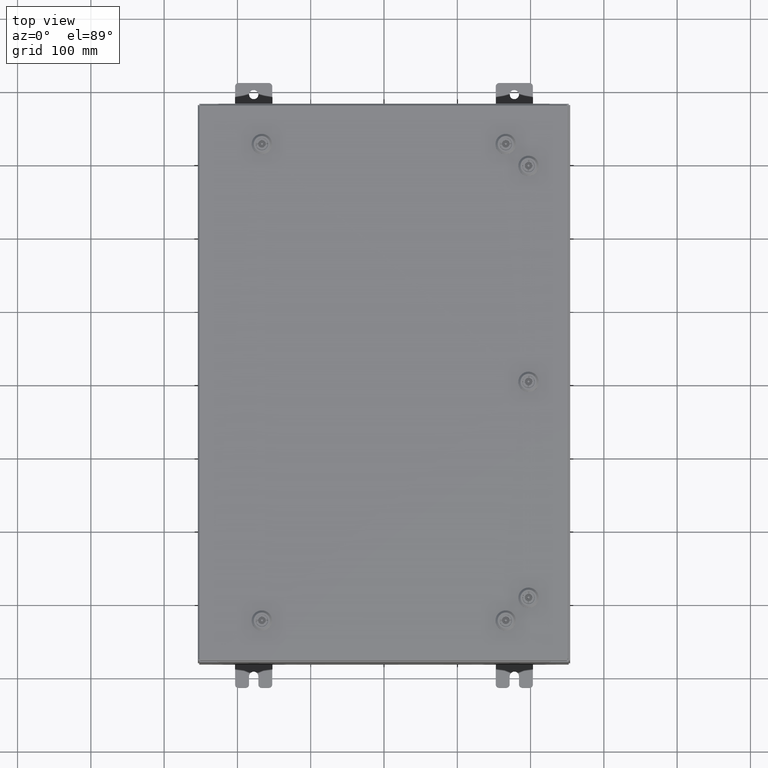
[diagram: clean part render]
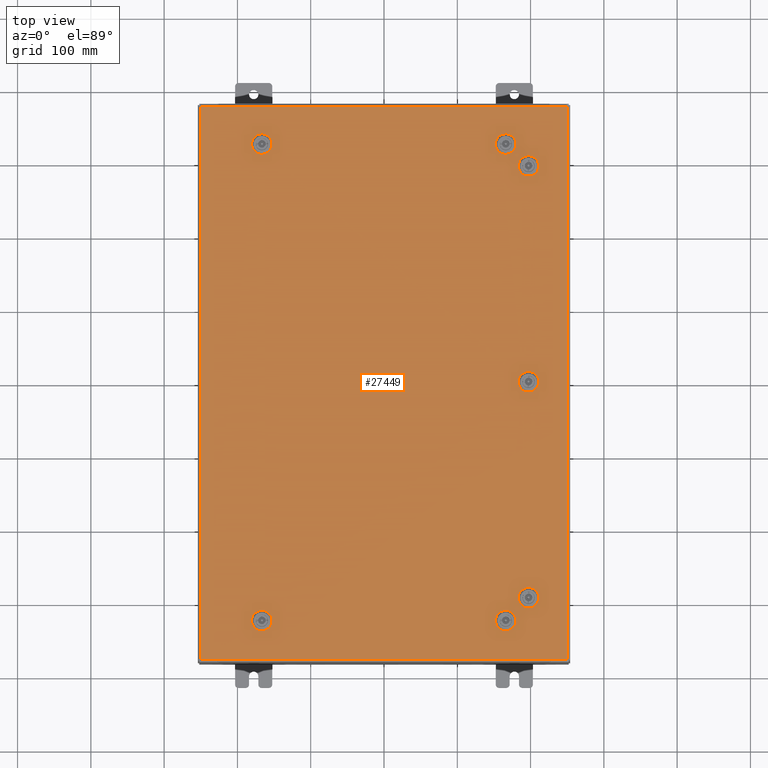
[diagram: same view with one face highlighted and labeled with its STEP entity id]
A machine part, top view. The second image highlights one B-rep face of the part: STEP entity #27449.
In plain terms, the highlighted planar face has unit normal (0, 0, -1).
Its self-contained STEP definition (entity closure, byte-faithful):
#206 = CARTESIAN_POINT ( 'NONE',  ( 7.392800000000011800, 0.1994523752679053200, 0.0000000000000000000 ) ) ;
#484 = EDGE_CURVE ( 'NONE', #19326, #58439, #45824, .T. ) ;
#486 = LINE ( 'NONE', #51696, #26756 ) ;
#666 = DIRECTION ( 'NONE',  ( 1.000000000000000000, 0.0000000000000000000, 0.0000000000000000000 ) ) ;
#732 = DIRECTION ( 'NONE',  ( -6.982962677686266700E-015, -6.982962677686266700E-015, 1.000000000000000000 ) ) ;
#838 = CARTESIAN_POINT ( 'NONE',  ( 7.004999999999984800, -12.78779999999999700, -2.017028769449672900E-014 ) ) ;
#1122 = DIRECTION ( 'NONE',  ( 1.000000000000000000, 0.0000000000000000000, 0.0000000000000000000 ) ) ;
#1503 = VERTEX_POINT ( 'NONE', #36564 ) ;
#1532 = CARTESIAN_POINT ( 'NONE',  ( 8.182800000000000300, 11.76195237526789900, 0.0000000000000000000 ) ) ;
#1545 = ORIENTED_EDGE ( 'NONE', *, *, #41776, .F. ) ;
#1631 = ORIENTED_EDGE ( 'NONE', *, *, #59492, .F. ) ;
#1767 = CARTESIAN_POINT ( 'NONE',  ( 6.363047624732096200, -13.18279999999999000, -2.741128742953046100E-014 ) ) ;
#1969 = CARTESIAN_POINT ( 'NONE',  ( -6.562499999999987600, -12.78779999999999700, -4.963978678686834100E-014 ) ) ;
#2370 = DIRECTION ( 'NONE',  ( 1.000000000000000000, -0.0000000000000000000, -0.0000000000000000000 ) ) ;
#2965 = CIRCLE ( 'NONE', #55963, 0.4424999999999972800 ) ;
#3032 = ORIENTED_EDGE ( 'NONE', *, *, #23575, .F. ) ;
#3614 = EDGE_CURVE ( 'NONE', #10126, #55938, #41154, .T. ) ;
#3783 = CIRCLE ( 'NONE', #26902, 0.4424999999999972800 ) ;
#4040 = DIRECTION ( 'NONE',  ( -1.000000000000000000, 0.0000000000000000000, 6.982962677686260400E-015 ) ) ;
#4041 = DIRECTION ( 'NONE',  ( -1.000000000000000000, 1.095739467627835000E-014, 0.0000000000000000000 ) ) ;
#4301 = EDGE_CURVE ( 'NONE', #49969, #47012, #21007, .T. ) ;
#4374 = CARTESIAN_POINT ( 'NONE',  ( 7.392800000000008300, -0.1994523752678671000, 0.0000000000000000000 ) ) ;
#4686 = EDGE_CURVE ( 'NONE', #22682, #29382, #62818, .T. ) ;
#4811 = DIRECTION ( 'NONE',  ( 0.0000000000000000000, 0.0000000000000000000, 1.000000000000000000 ) ) ;
#4847 = ORIENTED_EDGE ( 'NONE', *, *, #6791, .F. ) ;
#5235 = CARTESIAN_POINT ( 'NONE',  ( -6.761952375267868300, 13.18279999999999000, 0.0000000000000000000 ) ) ;
#5330 = CARTESIAN_POINT ( 'NONE',  ( 6.562499999999987600, -12.78779999999999700, -2.326024867937287700E-014 ) ) ;
#5728 = VERTEX_POINT ( 'NONE', #22214 ) ;
#5762 = LINE ( 'NONE', #18739, #15822 ) ;
#5871 = CARTESIAN_POINT ( 'NONE',  ( 7.787800000000006900, -11.56250000000001600, -2.429631085186127900E-013 ) ) ;
#5880 = VECTOR ( 'NONE', #25146, 39.37007874015748100 ) ;
#6586 = EDGE_CURVE ( 'NONE', #57684, #55683, #10996, .T. ) ;
#6650 = DIRECTION ( 'NONE',  ( 6.982962677686266700E-015, -0.0000000000000000000, 1.000000000000000000 ) ) ;
#6791 = EDGE_CURVE ( 'NONE', #16489, #63056, #17852, .T. ) ;
#6844 = ORIENTED_EDGE ( 'NONE', *, *, #30950, .F. ) ;
#6984 = DIRECTION ( 'NONE',  ( 0.0000000000000000000, 1.000000000000000000, 6.982962677686286400E-015 ) ) ;
#7066 = ORIENTED_EDGE ( 'NONE', *, *, #27459, .F. ) ;
#7252 = EDGE_CURVE ( 'NONE', #47012, #43562, #10174, .T. ) ;
#7514 = ORIENTED_EDGE ( 'NONE', *, *, #49613, .F. ) ;
#7570 = ORIENTED_EDGE ( 'NONE', *, *, #51138, .F. ) ;
#8162 = DIRECTION ( 'NONE',  ( 0.0000000000000000000, 0.0000000000000000000, 1.000000000000000000 ) ) ;
#8237 = CARTESIAN_POINT ( 'NONE',  ( -9.849800000000001900, 14.84980000000000000, -3.483106191921935600E-015 ) ) ;
#8366 = CARTESIAN_POINT ( 'NONE',  ( 7.392800000000010900, -11.36304762473213300, 0.0000000000000000000 ) ) ;
#8414 = ORIENTED_EDGE ( 'NONE', *, *, #4686, .F. ) ;
#8649 = CARTESIAN_POINT ( 'NONE',  ( 7.787800000000005200, 1.529834876451990400E-014, 0.0000000000000000000 ) ) ;
#8868 = EDGE_CURVE ( 'NONE', #43540, #57029, #3783, .T. ) ;
#8929 = CARTESIAN_POINT ( 'NONE',  ( 7.787800000000006900, -11.56250000000001600, -2.429631085186127900E-013 ) ) ;
#9174 = VERTEX_POINT ( 'NONE', #27653 ) ;
#9424 = FACE_OUTER_BOUND ( 'NONE', #15507, .T. ) ;
#9519 = CARTESIAN_POINT ( 'NONE',  ( 6.761952375267869200, -13.18279999999999300, -2.462575044458744400E-014 ) ) ;
#9533 = CARTESIAN_POINT ( 'NONE',  ( 6.562499999999987600, -12.78779999999999700, -2.326024867937287700E-014 ) ) ;
#9803 = EDGE_CURVE ( 'NONE', #23962, #49969, #40038, .T. ) ;
#9968 = VECTOR ( 'NONE', #4041, 39.37007874015748100 ) ;
#10126 = VERTEX_POINT ( 'NONE', #60292 ) ;
#10174 = LINE ( 'NONE', #8237, #46468 ) ;
#10241 = EDGE_CURVE ( 'NONE', #59771, #5728, #12987, .T. ) ;
#10333 = DIRECTION ( 'NONE',  ( 1.000000000000000000, 0.0000000000000000000, 6.982962677686260400E-015 ) ) ;
#10675 = DIRECTION ( 'NONE',  ( 0.0000000000000000000, 0.0000000000000000000, 1.000000000000000000 ) ) ;
#10732 = DIRECTION ( 'NONE',  ( 0.0000000000000000000, 0.0000000000000000000, 1.000000000000000000 ) ) ;
#10779 = CARTESIAN_POINT ( 'NONE',  ( 6.363047624732095300, 13.18279999999999000, -2.498676961502389700E-014 ) ) ;
#10880 = DIRECTION ( 'NONE',  ( 0.0000000000000000000, 1.000000000000000000, 6.982962677686304600E-015 ) ) ;
#10996 = CIRCLE ( 'NONE', #46758, 0.4424999999999983400 ) ;
#11019 = FACE_BOUND ( 'NONE', #56120, .T. ) ;
#11286 = CARTESIAN_POINT ( 'NONE',  ( -6.119999999999989400, 12.78779999999999400, 0.0000000000000000000 ) ) ;
#11298 = VECTOR ( 'NONE', #46085, 39.37007874015748100 ) ;
#11421 = CARTESIAN_POINT ( 'NONE',  ( 6.562499999999986700, 12.78779999999999700, -2.637953810749545800E-014 ) ) ;
#11682 = CARTESIAN_POINT ( 'NONE',  ( 6.761952375267871900, 12.39280000000000100, -2.777230659996697100E-014 ) ) ;
#11947 = CARTESIAN_POINT ( 'NONE',  ( -6.761952375267869200, -13.18279999999999300, 0.0000000000000000000 ) ) ;
#12100 = ORIENTED_EDGE ( 'NONE', *, *, #30446, .F. ) ;
#12284 = ORIENTED_EDGE ( 'NONE', *, *, #58791, .F. ) ;
#12419 = EDGE_LOOP ( 'NONE', ( #13558, #29615, #3032, #27319 ) ) ;
#12763 = VECTOR ( 'NONE', #26389, 39.37007874015748100 ) ;
#12809 = LINE ( 'NONE', #1532, #11298 ) ;
#12987 = LINE ( 'NONE', #30951, #37630 ) ;
#13558 = ORIENTED_EDGE ( 'NONE', *, *, #19818, .F. ) ;
#13592 = DIRECTION ( 'NONE',  ( 1.000000000000000000, 0.0000000000000000000, 0.0000000000000000000 ) ) ;
#13891 = DIRECTION ( 'NONE',  ( 0.0000000000000000000, 1.000000000000000000, 6.982962677686270700E-015 ) ) ;
#14359 = LINE ( 'NONE', #50939, #63915 ) ;
#14374 = CARTESIAN_POINT ( 'NONE',  ( 6.761952375267871900, -12.39280000000000100, 0.0000000000000000000 ) ) ;
#14489 = DIRECTION ( 'NONE',  ( 1.000000000000000000, 0.0000000000000000000, 6.982962677686260400E-015 ) ) ;
#14529 = VECTOR ( 'NONE', #24400, 39.37007874015748100 ) ;
#15244 = EDGE_CURVE ( 'NONE', #41501, #19326, #18036, .T. ) ;
#15326 = VERTEX_POINT ( 'NONE', #838 ) ;
#15378 = ORIENTED_EDGE ( 'NONE', *, *, #35008, .F. ) ;
#15507 = EDGE_LOOP ( 'NONE', ( #49192, #60823, #41357, #42762 ) ) ;
#15721 = DIRECTION ( 'NONE',  ( -1.000000000000000000, -1.095739467627835000E-014, 6.982962677686269100E-015 ) ) ;
#15822 = VECTOR ( 'NONE', #58345, 39.37007874015748100 ) ;
#15964 = CARTESIAN_POINT ( 'NONE',  ( 9.849799999999996600, -14.84979999999999300, -2.048885995248197400E-016 ) ) ;
#16019 = ORIENTED_EDGE ( 'NONE', *, *, #10241, .F. ) ;
#16357 = DIRECTION ( 'NONE',  ( -1.000000000000000000, 0.0000000000000000000, 6.982962677686260400E-015 ) ) ;
#16489 = VERTEX_POINT ( 'NONE', #61903 ) ;
#16512 = CARTESIAN_POINT ( 'NONE',  ( 7.392800000000011800, 11.76195237526790500, 0.0000000000000000000 ) ) ;
#16539 = VECTOR ( 'NONE', #59949, 39.37007874015748100 ) ;
#16711 = DIRECTION ( 'NONE',  ( 1.000000000000000000, 0.0000000000000000000, 0.0000000000000000000 ) ) ;
#17041 = VECTOR ( 'NONE', #15721, 39.37007874015748100 ) ;
#17194 = AXIS2_PLACEMENT_3D ( 'NONE', #1969, #36476, #6984 ) ;
#17852 = CIRCLE ( 'NONE', #32184, 0.4424999999999983400 ) ;
#17904 = CIRCLE ( 'NONE', #51440, 0.4424999999999961700 ) ;
#18036 = LINE ( 'NONE', #54979, #16539 ) ;
#18320 = CARTESIAN_POINT ( 'NONE',  ( 7.392800000000014500, -11.76195237526790500, -2.443558770110843500E-013 ) ) ;
#18658 = CARTESIAN_POINT ( 'NONE',  ( -9.849800000000001900, 14.84980000000000000, -3.483106191921935600E-015 ) ) ;
#18739 = CARTESIAN_POINT ( 'NONE',  ( 8.182800000000002100, -11.76195237526789900, -2.443558770110843000E-013 ) ) ;
#19137 = CARTESIAN_POINT ( 'NONE',  ( -6.562499999999987600, -12.78779999999999700, -4.963978678686834100E-014 ) ) ;
#19326 = VERTEX_POINT ( 'NONE', #50449 ) ;
#19617 = EDGE_CURVE ( 'NONE', #43562, #23962, #486, .T. ) ;
#19818 = EDGE_CURVE ( 'NONE', #55683, #41832, #22112, .T. ) ;
#19823 = DIRECTION ( 'NONE',  ( -1.000000000000000000, -0.0000000000000000000, -6.982962677686314800E-015 ) ) ;
#20060 = CARTESIAN_POINT ( 'NONE',  ( 6.363047624732095300, 13.18279999999999000, -2.498676961502389700E-014 ) ) ;
#21007 = LINE ( 'NONE', #56007, #47335 ) ;
#21093 = EDGE_CURVE ( 'NONE', #29382, #10126, #45304, .T. ) ;
#21111 = AXIS2_PLACEMENT_3D ( 'NONE', #63333, #33569, #4040 ) ;
#21419 = EDGE_CURVE ( 'NONE', #38063, #32159, #14359, .T. ) ;
#21891 = EDGE_LOOP ( 'NONE', ( #6844, #45024, #39480, #7066, #51902 ) ) ;
#22112 = LINE ( 'NONE', #18320, #46914 ) ;
#22188 = EDGE_LOOP ( 'NONE', ( #32432, #1545, #57737, #12100, #43717 ) ) ;
#22214 = CARTESIAN_POINT ( 'NONE',  ( 8.182800000000000300, 0.1994523752679009100, 0.0000000000000000000 ) ) ;
#22369 = CARTESIAN_POINT ( 'NONE',  ( 9.849799999999996600, -14.84979999999999300, -2.048885995248197400E-016 ) ) ;
#22509 = FACE_BOUND ( 'NONE', #22188, .T. ) ;
#22619 = EDGE_CURVE ( 'NONE', #1503, #36727, #25849, .T. ) ;
#22682 = VERTEX_POINT ( 'NONE', #51340 ) ;
#23270 = DIRECTION ( 'NONE',  ( 8.218046007208784700E-015, -1.000000000000000000, -6.982962677686345600E-015 ) ) ;
#23575 = EDGE_CURVE ( 'NONE', #63884, #57684, #5762, .T. ) ;
#23769 = EDGE_CURVE ( 'NONE', #45688, #49471, #63788, .T. ) ;
#23962 = VERTEX_POINT ( 'NONE', #15964 ) ;
#24056 = FACE_BOUND ( 'NONE', #12419, .T. ) ;
#24103 = DIRECTION ( 'NONE',  ( 0.0000000000000000000, 1.000000000000000000, 6.982962677686286400E-015 ) ) ;
#24400 = DIRECTION ( 'NONE',  ( -8.218046007208784700E-015, -1.000000000000000000, 0.0000000000000000000 ) ) ;
#25146 = DIRECTION ( 'NONE',  ( 1.000000000000000000, 1.095739467627835000E-014, 9.732121487607470400E-029 ) ) ;
#25797 = VECTOR ( 'NONE', #19823, 39.37007874015748100 ) ;
#25809 = ORIENTED_EDGE ( 'NONE', *, *, #62404, .F. ) ;
#25849 = LINE ( 'NONE', #1767, #12763 ) ;
#26008 = DIRECTION ( 'NONE',  ( -8.218046007208852600E-015, 1.000000000000000000, -0.0000000000000000000 ) ) ;
#26122 = EDGE_CURVE ( 'NONE', #49471, #1503, #55179, .T. ) ;
#26279 = DIRECTION ( 'NONE',  ( -1.000000000000000000, -0.0000000000000000000, -0.0000000000000000000 ) ) ;
#26389 = DIRECTION ( 'NONE',  ( 1.000000000000000000, -1.095739467627835000E-014, 6.982962677686171300E-015 ) ) ;
#26496 = CARTESIAN_POINT ( 'NONE',  ( -9.849799999999996600, -14.84979999999999500, -2.048885995248197400E-016 ) ) ;
#26756 = VECTOR ( 'NONE', #2370, 39.37007874015748100 ) ;
#26879 = VECTOR ( 'NONE', #52265, 39.37007874015748100 ) ;
#26902 = AXIS2_PLACEMENT_3D ( 'NONE', #11421, #45949, #16357 ) ;
#27014 = ORIENTED_EDGE ( 'NONE', *, *, #55982, .F. ) ;
#27024 = EDGE_LOOP ( 'NONE', ( #33872, #8414, #15378, #12284, #45464 ) ) ;
#27083 = CIRCLE ( 'NONE', #28952, 0.4424999999999983400 ) ;
#27269 = AXIS2_PLACEMENT_3D ( 'NONE', #30323, #732, #35287 ) ;
#27319 = ORIENTED_EDGE ( 'NONE', *, *, #40294, .F. ) ;
#27449 = ADVANCED_FACE ( 'NONE', ( #24056, #50457, #11019, #62050, #48874, #35620, #22509, #9424 ), #43153, .F. ) ;
#27459 = EDGE_CURVE ( 'NONE', #62981, #43540, #47309, .T. ) ;
#27653 = CARTESIAN_POINT ( 'NONE',  ( -6.363047624732104200, -12.39280000000000100, -4.688151652918229300E-014 ) ) ;
#27853 = CARTESIAN_POINT ( 'NONE',  ( 7.004999999999983900, 12.78779999999999700, -2.946949909237161200E-014 ) ) ;
#27927 = CIRCLE ( 'NONE', #32494, 0.4424999999999972800 ) ;
#28290 = EDGE_CURVE ( 'NONE', #32159, #59771, #27083, .T. ) ;
#28385 = DIRECTION ( 'NONE',  ( -0.0000000000000000000, -6.982962677686266700E-015, 1.000000000000000000 ) ) ;
#28437 = DIRECTION ( 'NONE',  ( 0.0000000000000000000, 0.0000000000000000000, -1.000000000000000000 ) ) ;
#28608 = CARTESIAN_POINT ( 'NONE',  ( -6.363047624732095300, 13.18279999999998400, 0.0000000000000000000 ) ) ;
#28952 = AXIS2_PLACEMENT_3D ( 'NONE', #34343, #4811, #39307 ) ;
#29382 = VERTEX_POINT ( 'NONE', #11947 ) ;
#29536 = CARTESIAN_POINT ( 'NONE',  ( 8.182800000000005600, -11.36304762473213100, -2.415703400261412700E-013 ) ) ;
#29615 = ORIENTED_EDGE ( 'NONE', *, *, #6586, .F. ) ;
#30101 = CARTESIAN_POINT ( 'NONE',  ( 8.182800000000003800, 11.36304762473213100, 0.0000000000000000000 ) ) ;
#30135 = LINE ( 'NONE', #10779, #17041 ) ;
#30260 = DIRECTION ( 'NONE',  ( 0.0000000000000000000, 0.0000000000000000000, 1.000000000000000000 ) ) ;
#30323 = CARTESIAN_POINT ( 'NONE',  ( 6.562499999999987600, -12.78779999999999700, -2.326024867937287700E-014 ) ) ;
#30446 = EDGE_CURVE ( 'NONE', #58439, #54930, #45698, .T. ) ;
#30702 = DIRECTION ( 'NONE',  ( 0.0000000000000000000, 0.0000000000000000000, 1.000000000000000000 ) ) ;
#30950 = EDGE_CURVE ( 'NONE', #61862, #39701, #30135, .T. ) ;
#30951 = CARTESIAN_POINT ( 'NONE',  ( 8.182800000000000300, 0.1994523752679009100, 0.0000000000000000000 ) ) ;
#31997 = CIRCLE ( 'NONE', #48615, 0.4424999999999972800 ) ;
#32159 = VERTEX_POINT ( 'NONE', #4374 ) ;
#32184 = AXIS2_PLACEMENT_3D ( 'NONE', #40183, #10675, #45190 ) ;
#32432 = ORIENTED_EDGE ( 'NONE', *, *, #15244, .F. ) ;
#32494 = AXIS2_PLACEMENT_3D ( 'NONE', #5330, #39837, #10333 ) ;
#33569 = DIRECTION ( 'NONE',  ( 6.982962677686266700E-015, -0.0000000000000000000, 1.000000000000000000 ) ) ;
#33872 = ORIENTED_EDGE ( 'NONE', *, *, #21093, .F. ) ;
#33974 = AXIS2_PLACEMENT_3D ( 'NONE', #37675, #8162, #42676 ) ;
#34343 = CARTESIAN_POINT ( 'NONE',  ( 7.787800000000005200, 1.529834876451990400E-014, 0.0000000000000000000 ) ) ;
#34424 = VERTEX_POINT ( 'NONE', #62792 ) ;
#34624 = CIRCLE ( 'NONE', #59233, 0.4424999999999961700 ) ;
#35008 = EDGE_CURVE ( 'NONE', #9174, #22682, #58503, .T. ) ;
#35135 = EDGE_LOOP ( 'NONE', ( #41687, #56515, #27014, #53332, #50268 ) ) ;
#35287 = DIRECTION ( 'NONE',  ( 1.000000000000000000, 0.0000000000000000000, 6.982962677686260400E-015 ) ) ;
#35620 = FACE_BOUND ( 'NONE', #21891, .T. ) ;
#36155 = CARTESIAN_POINT ( 'NONE',  ( 6.562499999999986700, 12.78779999999999700, -2.637953810749545800E-014 ) ) ;
#36362 = CARTESIAN_POINT ( 'NONE',  ( 8.182800000000002100, -11.76195237526789900, -2.443558770110843000E-013 ) ) ;
#36476 = DIRECTION ( 'NONE',  ( -0.0000000000000000000, -6.982962677686266700E-015, 1.000000000000000000 ) ) ;
#36564 = CARTESIAN_POINT ( 'NONE',  ( 6.363047624732096200, -13.18279999999999000, -2.741128742953046100E-014 ) ) ;
#36600 = AXIS2_PLACEMENT_3D ( 'NONE', #58099, #28385, #63095 ) ;
#36727 = VERTEX_POINT ( 'NONE', #9519 ) ;
#36861 = AXIS2_PLACEMENT_3D ( 'NONE', #8649, #43147, #13592 ) ;
#37630 = VECTOR ( 'NONE', #26008, 39.37007874015748100 ) ;
#37675 = CARTESIAN_POINT ( 'NONE',  ( -6.562499999999986700, 12.78779999999999400, 0.0000000000000000000 ) ) ;
#38063 = VERTEX_POINT ( 'NONE', #206 ) ;
#38385 = CARTESIAN_POINT ( 'NONE',  ( 6.363047624732101500, 12.39280000000000100, -2.498676961502394800E-014 ) ) ;
#39307 = DIRECTION ( 'NONE',  ( 1.000000000000000000, 0.0000000000000000000, 0.0000000000000000000 ) ) ;
#39480 = ORIENTED_EDGE ( 'NONE', *, *, #8868, .F. ) ;
#39701 = VERTEX_POINT ( 'NONE', #20060 ) ;
#39830 = CARTESIAN_POINT ( 'NONE',  ( -6.363047624732096200, -13.18279999999999000, -5.239805704455435800E-014 ) ) ;
#39837 = DIRECTION ( 'NONE',  ( -6.982962677686266700E-015, -6.982962677686266700E-015, 1.000000000000000000 ) ) ;
#40038 = LINE ( 'NONE', #22369, #26879 ) ;
#40183 = CARTESIAN_POINT ( 'NONE',  ( 7.787800000000005200, 11.56250000000001600, 0.0000000000000000000 ) ) ;
#40294 = EDGE_CURVE ( 'NONE', #41832, #63884, #17904, .T. ) ;
#40394 = DIRECTION ( 'NONE',  ( -0.0000000000000000000, -6.982962677686266700E-015, 1.000000000000000000 ) ) ;
#41123 = DIRECTION ( 'NONE',  ( -8.218046007208770500E-015, -1.000000000000000000, 0.0000000000000000000 ) ) ;
#41154 = CIRCLE ( 'NONE', #17194, 0.4424999999999961700 ) ;
#41178 = DIRECTION ( 'NONE',  ( -1.000000000000000000, 0.0000000000000000000, 6.982962677686269100E-015 ) ) ;
#41357 = ORIENTED_EDGE ( 'NONE', *, *, #4301, .T. ) ;
#41501 = VERTEX_POINT ( 'NONE', #53955 ) ;
#41687 = ORIENTED_EDGE ( 'NONE', *, *, #23769, .F. ) ;
#41776 = EDGE_CURVE ( 'NONE', #62020, #41501, #53438, .T. ) ;
#41832 = VERTEX_POINT ( 'NONE', #50705 ) ;
#42676 = DIRECTION ( 'NONE',  ( 1.000000000000000000, 0.0000000000000000000, 0.0000000000000000000 ) ) ;
#42762 = ORIENTED_EDGE ( 'NONE', *, *, #7252, .T. ) ;
#43147 = DIRECTION ( 'NONE',  ( 0.0000000000000000000, 0.0000000000000000000, 1.000000000000000000 ) ) ;
#43153 = PLANE ( 'NONE',  #51428 ) ;
#43449 = DIRECTION ( 'NONE',  ( -0.0000000000000000000, -6.982962677686266700E-015, 1.000000000000000000 ) ) ;
#43540 = VERTEX_POINT ( 'NONE', #11682 ) ;
#43562 = VERTEX_POINT ( 'NONE', #26496 ) ;
#43717 = ORIENTED_EDGE ( 'NONE', *, *, #484, .F. ) ;
#44070 = DIRECTION ( 'NONE',  ( -6.982962677686266700E-015, -6.982962677686266700E-015, 1.000000000000000000 ) ) ;
#45024 = ORIENTED_EDGE ( 'NONE', *, *, #47672, .F. ) ;
#45190 = DIRECTION ( 'NONE',  ( 1.000000000000000000, 0.0000000000000000000, 0.0000000000000000000 ) ) ;
#45252 = EDGE_CURVE ( 'NONE', #39701, #62981, #60981, .T. ) ;
#45304 = LINE ( 'NONE', #39830, #5880 ) ;
#45464 = ORIENTED_EDGE ( 'NONE', *, *, #3614, .F. ) ;
#45688 = VERTEX_POINT ( 'NONE', #14374 ) ;
#45698 = CIRCLE ( 'NONE', #33974, 0.4424999999999972800 ) ;
#45824 = CIRCLE ( 'NONE', #54646, 0.4424999999999972800 ) ;
#45949 = DIRECTION ( 'NONE',  ( 6.982962677686266700E-015, -0.0000000000000000000, 1.000000000000000000 ) ) ;
#45954 = VERTEX_POINT ( 'NONE', #16512 ) ;
#46085 = DIRECTION ( 'NONE',  ( -8.218046007208830500E-015, 1.000000000000000000, -0.0000000000000000000 ) ) ;
#46468 = VECTOR ( 'NONE', #57750, 39.37007874015748100 ) ;
#46637 = EDGE_CURVE ( 'NONE', #15326, #45688, #2965, .T. ) ;
#46758 = AXIS2_PLACEMENT_3D ( 'NONE', #8929, #43449, #13891 ) ;
#46914 = VECTOR ( 'NONE', #23270, 39.37007874015748100 ) ;
#47012 = VERTEX_POINT ( 'NONE', #18658 ) ;
#47309 = LINE ( 'NONE', #38385, #60527 ) ;
#47335 = VECTOR ( 'NONE', #26279, 39.37007874015748100 ) ;
#47672 = EDGE_CURVE ( 'NONE', #57029, #61862, #60982, .T. ) ;
#48186 = CARTESIAN_POINT ( 'NONE',  ( 0.0000000000000000000, 0.0000000000000000000, 0.0000000000000000000 ) ) ;
#48458 = VECTOR ( 'NONE', #61570, 39.37007874015748100 ) ;
#48615 = AXIS2_PLACEMENT_3D ( 'NONE', #59996, #30260, #666 ) ;
#48874 = FACE_BOUND ( 'NONE', #27024, .T. ) ;
#49192 = ORIENTED_EDGE ( 'NONE', *, *, #19617, .T. ) ;
#49424 = LINE ( 'NONE', #28608, #9968 ) ;
#49471 = VERTEX_POINT ( 'NONE', #56892 ) ;
#49613 = EDGE_CURVE ( 'NONE', #5728, #38063, #59298, .T. ) ;
#49944 = CARTESIAN_POINT ( 'NONE',  ( 9.849799999999994800, 14.84980000000000200, 8.878505979408856000E-016 ) ) ;
#49969 = VERTEX_POINT ( 'NONE', #49944 ) ;
#50268 = ORIENTED_EDGE ( 'NONE', *, *, #26122, .F. ) ;
#50449 = CARTESIAN_POINT ( 'NONE',  ( -6.363047624732101500, 12.39279999999999800, 0.0000000000000000000 ) ) ;
#50457 = FACE_BOUND ( 'NONE', #56738, .T. ) ;
#50705 = CARTESIAN_POINT ( 'NONE',  ( 7.392800000000014500, -11.76195237526790500, -2.443558770110843000E-013 ) ) ;
#50939 = CARTESIAN_POINT ( 'NONE',  ( 7.392800000000011800, 0.1994523752679053800, 0.0000000000000000000 ) ) ;
#51138 = EDGE_CURVE ( 'NONE', #34424, #45954, #31997, .T. ) ;
#51340 = CARTESIAN_POINT ( 'NONE',  ( -6.761952375267871900, -12.39280000000000100, -4.688151652918228700E-014 ) ) ;
#51428 = AXIS2_PLACEMENT_3D ( 'NONE', #48186, #28437, #63149 ) ;
#51440 = AXIS2_PLACEMENT_3D ( 'NONE', #5871, #40394, #10880 ) ;
#51696 = CARTESIAN_POINT ( 'NONE',  ( -9.849799999999996600, -14.84979999999999500, -2.048885995248197400E-016 ) ) ;
#51902 = ORIENTED_EDGE ( 'NONE', *, *, #45252, .F. ) ;
#52265 = DIRECTION ( 'NONE',  ( 0.0000000000000000000, 1.000000000000000000, 0.0000000000000000000 ) ) ;
#52751 = DIRECTION ( 'NONE',  ( 1.000000000000000000, 0.0000000000000000000, -6.982962677686248600E-015 ) ) ;
#53332 = ORIENTED_EDGE ( 'NONE', *, *, #22619, .F. ) ;
#53417 = CARTESIAN_POINT ( 'NONE',  ( -6.363047624732095300, 13.18279999999998400, 0.0000000000000000000 ) ) ;
#53438 = CIRCLE ( 'NONE', #61022, 0.4424999999999972800 ) ;
#53796 = DIRECTION ( 'NONE',  ( -0.0000000000000000000, -6.982962677686266700E-015, 1.000000000000000000 ) ) ;
#53932 = ORIENTED_EDGE ( 'NONE', *, *, #28290, .F. ) ;
#53955 = CARTESIAN_POINT ( 'NONE',  ( -6.761952375267871900, 12.39279999999999800, 0.0000000000000000000 ) ) ;
#54008 = LINE ( 'NONE', #54106, #14529 ) ;
#54106 = CARTESIAN_POINT ( 'NONE',  ( 7.392800000000011800, 11.76195237526790500, 0.0000000000000000000 ) ) ;
#54248 = AXIS2_PLACEMENT_3D ( 'NONE', #36155, #6650, #41178 ) ;
#54427 = CARTESIAN_POINT ( 'NONE',  ( 6.363047624732101500, 12.39280000000000100, -2.498676961502394800E-014 ) ) ;
#54482 = CARTESIAN_POINT ( 'NONE',  ( 6.363047624732104200, -12.39280000000000100, -2.189474691415834200E-014 ) ) ;
#54646 = AXIS2_PLACEMENT_3D ( 'NONE', #63193, #10732, #16711 ) ;
#54930 = VERTEX_POINT ( 'NONE', #53417 ) ;
#54979 = CARTESIAN_POINT ( 'NONE',  ( -6.363047624732101500, 12.39279999999999800, 0.0000000000000000000 ) ) ;
#55179 = CIRCLE ( 'NONE', #27269, 0.4424999999999972800 ) ;
#55683 = VERTEX_POINT ( 'NONE', #8366 ) ;
#55938 = VERTEX_POINT ( 'NONE', #63735 ) ;
#55963 = AXIS2_PLACEMENT_3D ( 'NONE', #9533, #44070, #14489 ) ;
#55982 = EDGE_CURVE ( 'NONE', #36727, #15326, #27927, .T. ) ;
#56007 = CARTESIAN_POINT ( 'NONE',  ( 9.849799999999994800, 14.84980000000000200, 8.878505979408856000E-016 ) ) ;
#56120 = EDGE_LOOP ( 'NONE', ( #16019, #53932, #57824, #7514 ) ) ;
#56384 = CARTESIAN_POINT ( 'NONE',  ( 8.182800000000003800, -0.1994523752678676000, 0.0000000000000000000 ) ) ;
#56515 = ORIENTED_EDGE ( 'NONE', *, *, #46637, .F. ) ;
#56590 = CARTESIAN_POINT ( 'NONE',  ( -6.363047624732104200, -12.39280000000000100, -4.688151652918229300E-014 ) ) ;
#56738 = EDGE_LOOP ( 'NONE', ( #25809, #4847, #1631, #7570 ) ) ;
#56892 = CARTESIAN_POINT ( 'NONE',  ( 6.363047624732104200, -12.39280000000000100, -2.189474691415834200E-014 ) ) ;
#57029 = VERTEX_POINT ( 'NONE', #27853 ) ;
#57684 = VERTEX_POINT ( 'NONE', #29536 ) ;
#57737 = ORIENTED_EDGE ( 'NONE', *, *, #58744, .F. ) ;
#57750 = DIRECTION ( 'NONE',  ( 0.0000000000000000000, -1.000000000000000000, 0.0000000000000000000 ) ) ;
#57824 = ORIENTED_EDGE ( 'NONE', *, *, #21419, .F. ) ;
#58099 = CARTESIAN_POINT ( 'NONE',  ( -6.562499999999987600, -12.78779999999999700, -4.963978678686834100E-014 ) ) ;
#58345 = DIRECTION ( 'NONE',  ( 8.218046007208830500E-015, 1.000000000000000000, 6.982962677686306200E-015 ) ) ;
#58439 = VERTEX_POINT ( 'NONE', #11286 ) ;
#58503 = LINE ( 'NONE', #56590, #48458 ) ;
#58632 = CARTESIAN_POINT ( 'NONE',  ( 6.761952375267868300, 13.18279999999999300, 0.0000000000000000000 ) ) ;
#58744 = EDGE_CURVE ( 'NONE', #54930, #62020, #49424, .T. ) ;
#58791 = EDGE_CURVE ( 'NONE', #55938, #9174, #34624, .T. ) ;
#59233 = AXIS2_PLACEMENT_3D ( 'NONE', #19137, #53796, #24103 ) ;
#59298 = CIRCLE ( 'NONE', #36861, 0.4424999999999972800 ) ;
#59492 = EDGE_CURVE ( 'NONE', #45954, #16489, #54008, .T. ) ;
#59771 = VERTEX_POINT ( 'NONE', #56384 ) ;
#59949 = DIRECTION ( 'NONE',  ( 1.000000000000000000, -0.0000000000000000000, -0.0000000000000000000 ) ) ;
#59996 = CARTESIAN_POINT ( 'NONE',  ( 7.787800000000005200, 11.56250000000001600, 0.0000000000000000000 ) ) ;
#60292 = CARTESIAN_POINT ( 'NONE',  ( -6.363047624732096200, -13.18279999999999000, -5.239805704455435800E-014 ) ) ;
#60456 = CARTESIAN_POINT ( 'NONE',  ( -6.562499999999986700, 12.78779999999999400, 0.0000000000000000000 ) ) ;
#60527 = VECTOR ( 'NONE', #52751, 39.37007874015748100 ) ;
#60823 = ORIENTED_EDGE ( 'NONE', *, *, #9803, .T. ) ;
#60981 = CIRCLE ( 'NONE', #54248, 0.4424999999999972800 ) ;
#60982 = CIRCLE ( 'NONE', #21111, 0.4424999999999972800 ) ;
#61022 = AXIS2_PLACEMENT_3D ( 'NONE', #60456, #30702, #1122 ) ;
#61570 = DIRECTION ( 'NONE',  ( -1.000000000000000000, 0.0000000000000000000, 1.946424297521520700E-029 ) ) ;
#61862 = VERTEX_POINT ( 'NONE', #58632 ) ;
#61903 = CARTESIAN_POINT ( 'NONE',  ( 7.392800000000008300, 11.36304762473213300, 0.0000000000000000000 ) ) ;
#62020 = VERTEX_POINT ( 'NONE', #5235 ) ;
#62050 = FACE_BOUND ( 'NONE', #35135, .T. ) ;
#62404 = EDGE_CURVE ( 'NONE', #63056, #34424, #12809, .T. ) ;
#62792 = CARTESIAN_POINT ( 'NONE',  ( 8.182800000000000300, 11.76195237526789900, 0.0000000000000000000 ) ) ;
#62818 = CIRCLE ( 'NONE', #36600, 0.4424999999999961700 ) ;
#62981 = VERTEX_POINT ( 'NONE', #54427 ) ;
#63056 = VERTEX_POINT ( 'NONE', #30101 ) ;
#63095 = DIRECTION ( 'NONE',  ( 0.0000000000000000000, 1.000000000000000000, 6.982962677686269100E-015 ) ) ;
#63149 = DIRECTION ( 'NONE',  ( -1.000000000000000000, 0.0000000000000000000, -0.0000000000000000000 ) ) ;
#63193 = CARTESIAN_POINT ( 'NONE',  ( -6.562499999999986700, 12.78779999999999400, 0.0000000000000000000 ) ) ;
#63333 = CARTESIAN_POINT ( 'NONE',  ( 6.562499999999986700, 12.78779999999999700, -2.637953810749545800E-014 ) ) ;
#63735 = CARTESIAN_POINT ( 'NONE',  ( -6.119999999999990300, -12.78779999999999700, -4.963978678686834100E-014 ) ) ;
#63788 = LINE ( 'NONE', #54482, #25797 ) ;
#63884 = VERTEX_POINT ( 'NONE', #36362 ) ;
#63915 = VECTOR ( 'NONE', #41123, 39.37007874015748100 ) ;